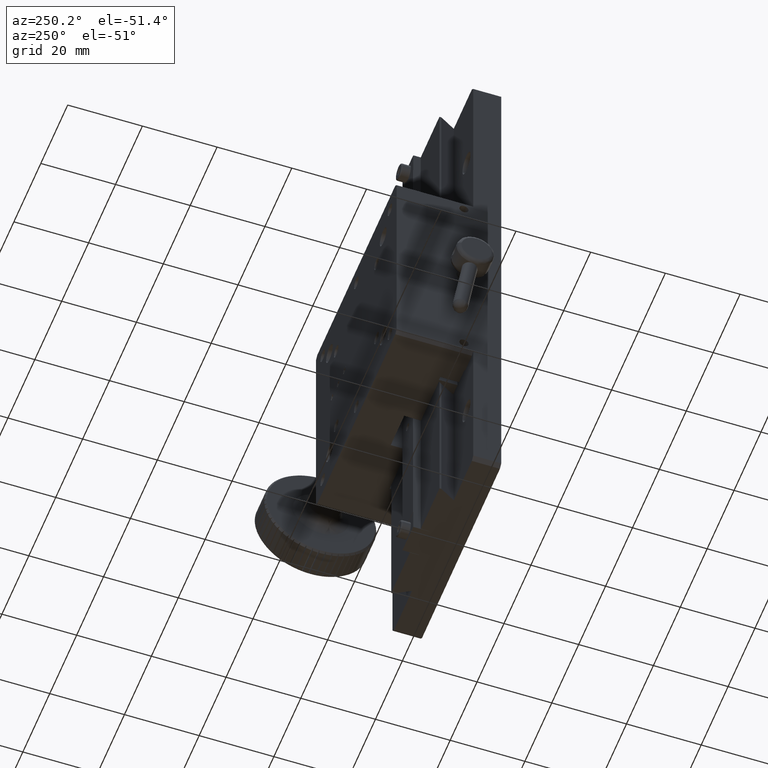
[diagram: clean part render]
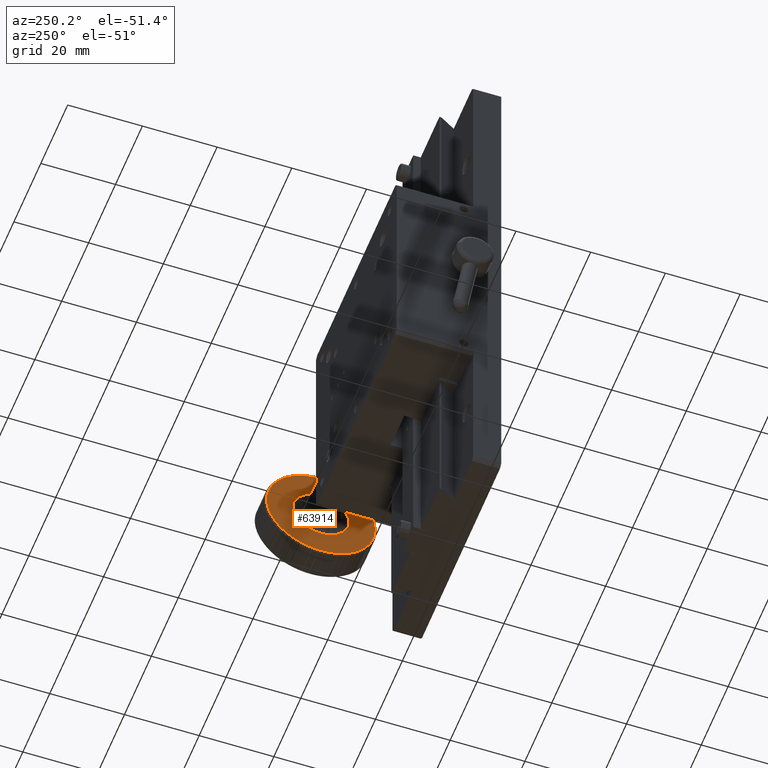
[diagram: same view with one face highlighted and labeled with its STEP entity id]
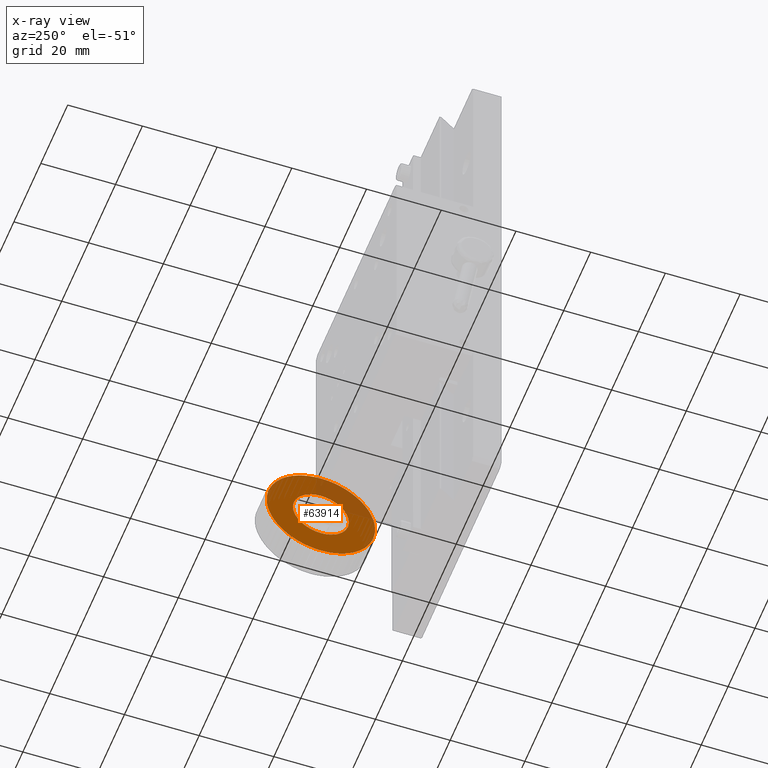
[diagram: x-ray of the same camera — body ghosted, the highlighted face saturated]
A machine part, auxiliary view. The second image highlights one B-rep face of the part: STEP entity #63914.
The next image is the same camera in x-ray: the body ghosted, the highlighted face saturated — about 21% of this face is hidden behind the body in this view.
In plain terms, the highlighted planar face has unit normal (1, 0, -0).
Its self-contained STEP definition (entity closure, byte-faithful):
#232 = CARTESIAN_POINT ( 'NONE',  ( 118.9015696099424844, 75.00408794080344421, 86.06019698115960637 ) ) ;
#410 = CARTESIAN_POINT ( 'NONE',  ( 118.9015696099414470, 89.40231383299942536, 84.34523600279980826 ) ) ;
#430 = CARTESIAN_POINT ( 'NONE',  ( 118.9015696099415607, 87.90411576022735574, 92.68132092336827554 ) ) ;
#704 = ORIENTED_EDGE ( 'NONE', *, *, #68886, .F. ) ;
#1112 = CARTESIAN_POINT ( 'NONE',  ( 118.9015696099425838, 73.71654745862105074, 100.5029196990802376 ) ) ;
#1373 = CARTESIAN_POINT ( 'NONE',  ( 118.9015696099424844, 75.00408794080344421, 86.06019698115960637 ) ) ;
#1397 = AXIS2_PLACEMENT_3D ( 'NONE', #73431, #41718, #34551 ) ;
#1443 = AXIS2_PLACEMENT_3D ( 'NONE', #77729, #84382, #46026 ) ;
#1455 = AXIS2_PLACEMENT_3D ( 'NONE', #30338, #15008, #46198 ) ;
#1562 = AXIS2_PLACEMENT_3D ( 'NONE', #19268, #99034, #42813 ) ;
#1816 = ORIENTED_EDGE ( 'NONE', *, *, #16479, .F. ) ;
#1970 = CARTESIAN_POINT ( 'NONE',  ( 118.9015696099422854, 77.66444812711456791, 93.07250642092982673 ) ) ;
#1978 = CARTESIAN_POINT ( 'NONE',  ( 118.9015696099415038, 88.59667302724825788, 91.10912069495820731 ) ) ;
#2119 = DIRECTION ( 'NONE',  ( 1.000000000000000000, 7.260422497122367093E-14, -3.328157626283211696E-16 ) ) ;
#2535 = DIRECTION ( 'NONE',  ( -7.273874988923439838E-14, 1.000000000000000000, 0.000000000000000000 ) ) ;
#2580 = CIRCLE ( 'NONE', #95842, 14.49999999999999822 ) ;
#2637 = EDGE_CURVE ( 'NONE', #27075, #62176, #68198, .T. ) ;
#2702 = VERTEX_POINT ( 'NONE', #83293 ) ;
#2736 = CIRCLE ( 'NONE', #61496, 14.49999999999999822 ) ;
#2811 = CARTESIAN_POINT ( 'NONE',  ( 118.9015696099435218, 60.52955383022080582, 85.20120787670080631 ) ) ;
#2933 = CIRCLE ( 'NONE', #60105, 14.49999999999999822 ) ;
#3244 = CARTESIAN_POINT ( 'NONE',  ( 118.9015696099435360, 60.52955383022082003, 86.91918608561853432 ) ) ;
#3252 = CIRCLE ( 'NONE', #4881, 14.49999999999999822 ) ;
#3274 = EDGE_CURVE ( 'NONE', #87458, #18703, #2933, .T. ) ;
#3508 = EDGE_CURVE ( 'NONE', #37802, #69131, #27376, .T. ) ;
#4076 = DIRECTION ( 'NONE',  ( -7.273874988923439838E-14, 1.000000000000000000, 0.000000000000000000 ) ) ;
#4414 = VERTEX_POINT ( 'NONE', #2811 ) ;
#4720 = CARTESIAN_POINT ( 'NONE',  ( 118.9015696099429391, 68.76814250779405313, 99.15076551566291130 ) ) ;
#4852 = EDGE_LOOP ( 'NONE', ( #33067, #38747 ) ) ;
#4881 = AXIS2_PLACEMENT_3D ( 'NONE', #32955, #95831, #80510 ) ;
#4997 = DIRECTION ( 'NONE',  ( 1.000000000000000000, 7.260422497122367093E-14, -3.328157626283211696E-16 ) ) ;
#5099 = CARTESIAN_POINT ( 'NONE',  ( 118.9015696099424844, 75.00408794080344421, 86.06019698115960637 ) ) ;
#5362 = CARTESIAN_POINT ( 'NONE',  ( 118.9015696099426691, 72.34372775449214998, 79.04788754138944284 ) ) ;
#5516 = CARTESIAN_POINT ( 'NONE',  ( 118.9015696099424844, 75.00408794080344421, 86.06019698115960637 ) ) ;
#6204 = AXIS2_PLACEMENT_3D ( 'NONE', #20304, #11645, #36664 ) ;
#6385 = CIRCLE ( 'NONE', #76653, 14.49999999999999822 ) ;
#6393 = CARTESIAN_POINT ( 'NONE',  ( 118.9015696099433796, 62.51895557017687821, 93.43389820157337056 ) ) ;
#7392 = CARTESIAN_POINT ( 'NONE',  ( 118.9015696099419728, 82.00457488039920406, 73.36204031932285829 ) ) ;
#7828 = CIRCLE ( 'NONE', #68303, 14.49999999999999822 ) ;
#8010 = AXIS2_PLACEMENT_3D ( 'NONE', #48219, #24687, #9348 ) ;
#8036 = CIRCLE ( 'NONE', #53732, 14.49999999999999822 ) ;
#8229 = EDGE_CURVE ( 'NONE', #101010, #33790, #63462, .T. ) ;
#8315 = CIRCLE ( 'NONE', #73693, 14.49999999999999822 ) ;
#8461 = EDGE_CURVE ( 'NONE', #58046, #82976, #81504, .T. ) ;
#8465 = VERTEX_POINT ( 'NONE', #85246 ) ;
#8860 = CARTESIAN_POINT ( 'NONE',  ( 118.9015696099434791, 61.13627366879394032, 90.29502015539584647 ) ) ;
#8904 = DIRECTION ( 'NONE',  ( -7.273874988923439838E-14, 1.000000000000000000, 0.000000000000000000 ) ) ;
#9348 = DIRECTION ( 'NONE',  ( -7.273874988923439838E-14, 1.000000000000000000, 0.000000000000000000 ) ) ;
#9410 = DIRECTION ( 'NONE',  ( 1.000000000000000000, 7.260422497122367093E-14, -3.328157626283211696E-16 ) ) ;
#9538 = EDGE_CURVE ( 'NONE', #11677, #95420, #52071, .T. ) ;
#9601 = CARTESIAN_POINT ( 'NONE',  ( 118.9015696099423280, 77.14496311883958413, 100.4012796973309349 ) ) ;
#9718 = VERTEX_POINT ( 'NONE', #5362 ) ;
#9960 = DIRECTION ( 'NONE',  ( 1.000000000000000000, 7.260422497122367093E-14, -3.328157626283211696E-16 ) ) ;
#9985 = AXIS2_PLACEMENT_3D ( 'NONE', #43577, #43070, #74279 ) ;
#10111 = EDGE_CURVE ( 'NONE', #49092, #92872, #61848, .T. ) ;
#10306 =( BOUNDED_CURVE ( )  B_SPLINE_CURVE ( 3, ( #1970, #49019, #17806, #50001 ),
 .UNSPECIFIED., .F., .T. ) 
 B_SPLINE_CURVE_WITH_KNOTS ( ( 4, 4 ),
 ( 0.000000000000000000, 1.000000000000000000 ),
 .UNSPECIFIED. ) 
 CURVE ( )  GEOMETRIC_REPRESENTATION_ITEM ( )  RATIONAL_B_SPLINE_CURVE ( ( 1.000000000000000000, 0.3333333333333321491, 0.3333333333333321491, 1.000000000000000000 ) ) 
 REPRESENTATION_ITEM ( '' )  );
#10540 = EDGE_CURVE ( 'NONE', #59543, #17063, #8036, .T. ) ;
#10819 = EDGE_CURVE ( 'NONE', #70922, #67849, #99521, .T. ) ;
#11063 = CIRCLE ( 'NONE', #101076, 14.49999999999999822 ) ;
#11484 = EDGE_CURVE ( 'NONE', #25901, #59543, #19493, .T. ) ;
#11494 = ORIENTED_EDGE ( 'NONE', *, *, #78228, .F. ) ;
#11518 = ORIENTED_EDGE ( 'NONE', *, *, #73108, .F. ) ;
#11525 = VERTEX_POINT ( 'NONE', #410 ) ;
#11601 = CARTESIAN_POINT ( 'NONE',  ( 118.9015696099424844, 75.00408794080344421, 86.06019698115960637 ) ) ;
#11645 = DIRECTION ( 'NONE',  ( 1.000000000000000000, 7.260422497122367093E-14, -3.328157626283211696E-16 ) ) ;
#11677 = VERTEX_POINT ( 'NONE', #9601 ) ;
#12498 = ORIENTED_EDGE ( 'NONE', *, *, #94490, .F. ) ;
#12653 = ORIENTED_EDGE ( 'NONE', *, *, #8461, .F. ) ;
#12918 = EDGE_CURVE ( 'NONE', #23426, #71209, #45643, .T. ) ;
#13101 = DIRECTION ( 'NONE',  ( 1.000000000000000000, 7.260422497122367093E-14, -3.328157626283211696E-16 ) ) ;
#13674 = DIRECTION ( 'NONE',  ( -7.273874988923439838E-14, 1.000000000000000000, 0.000000000000000000 ) ) ;
#13685 = ORIENTED_EDGE ( 'NONE', *, *, #55109, .F. ) ;
#14026 = VERTEX_POINT ( 'NONE', #19261 ) ;
#14198 = DIRECTION ( 'NONE',  ( 1.000000000000000000, 7.260422497122367093E-14, -3.328157626283211696E-16 ) ) ;
#14585 = CARTESIAN_POINT ( 'NONE',  ( 118.9015696099424844, 75.00408794080344421, 86.06019698115960637 ) ) ;
#14837 = FACE_OUTER_BOUND ( 'NONE', #61933, .T. ) ;
#15008 = DIRECTION ( 'NONE',  ( 1.000000000000000000, 7.260422497122367093E-14, -3.328157626283211696E-16 ) ) ;
#15205 = DIRECTION ( 'NONE',  ( -7.273874988923439838E-14, 1.000000000000000000, 0.000000000000000000 ) ) ;
#15361 = DIRECTION ( 'NONE',  ( 1.000000000000000000, 7.260422497122367093E-14, -3.328157626283211696E-16 ) ) ;
#16479 = EDGE_CURVE ( 'NONE', #42185, #20886, #68646, .T. ) ;
#17020 = EDGE_CURVE ( 'NONE', #28443, #49092, #57195, .T. ) ;
#17063 = VERTEX_POINT ( 'NONE', #49103 ) ;
#17410 = DIRECTION ( 'NONE',  ( 1.000000000000000000, 7.260422497122367093E-14, -3.328157626283211696E-16 ) ) ;
#17611 = CARTESIAN_POINT ( 'NONE',  ( 118.9015696099422001, 78.82610184880489612, 72.07298104348839729 ) ) ;
#17806 = CARTESIAN_POINT ( 'NONE',  ( 118.9015696099416601, 86.36834663403250545, 73.72716716876679754 ) ) ;
#18703 = VERTEX_POINT ( 'NONE', #29949 ) ;
#18872 = ORIENTED_EDGE ( 'NONE', *, *, #3508, .F. ) ;
#19261 = CARTESIAN_POINT ( 'NONE',  ( 118.9015696099422854, 77.66444812711456791, 93.07250642092982673 ) ) ;
#19268 = CARTESIAN_POINT ( 'NONE',  ( 118.9015696099424844, 75.00408794080344421, 86.06019698115960637 ) ) ;
#19273 = ORIENTED_EDGE ( 'NONE', *, *, #3274, .F. ) ;
#19294 = DIRECTION ( 'NONE',  ( 1.000000000000000000, 7.260422497122367093E-14, -3.328157626283211696E-16 ) ) ;
#19493 = CIRCLE ( 'NONE', #26004, 14.49999999999999822 ) ;
#19588 = ORIENTED_EDGE ( 'NONE', *, *, #39429, .F. ) ;
#20304 = CARTESIAN_POINT ( 'NONE',  ( 118.9015696099424844, 75.00408794080344421, 86.06019698115960637 ) ) ;
#20519 = CIRCLE ( 'NONE', #81003, 14.49999999999999822 ) ;
#20665 = CARTESIAN_POINT ( 'NONE',  ( 118.9015696099430386, 67.26364896031394380, 73.79905493038317843 ) ) ;
#20886 = VERTEX_POINT ( 'NONE', #70092 ) ;
#20938 = EDGE_CURVE ( 'NONE', #95420, #75816, #35792, .T. ) ;
#21214 = ORIENTED_EDGE ( 'NONE', *, *, #43456, .F. ) ;
#21386 = AXIS2_PLACEMENT_3D ( 'NONE', #68957, #30069, #30565 ) ;
#21572 = CARTESIAN_POINT ( 'NONE',  ( 118.9015696099424844, 75.00408794080344421, 86.06019698115960637 ) ) ;
#21819 = CARTESIAN_POINT ( 'NONE',  ( 118.9015696099417738, 84.79134146281764117, 96.75877952726450815 ) ) ;
#22196 = AXIS2_PLACEMENT_3D ( 'NONE', #99493, #46773, #92818 ) ;
#22315 = EDGE_CURVE ( 'NONE', #51288, #65307, #34253, .T. ) ;
#22580 = CARTESIAN_POINT ( 'NONE',  ( 118.9015696099436639, 58.31910887495381957, 84.36860791401130655 ) ) ;
#22742 = DIRECTION ( 'NONE',  ( 1.000000000000000000, 7.260422497122367093E-14, -3.328157626283211696E-16 ) ) ;
#22789 = AXIS2_PLACEMENT_3D ( 'NONE', #42962, #96664, #4076 ) ;
#22824 = VERTEX_POINT ( 'NONE', #99872 ) ;
#22900 = DIRECTION ( 'NONE',  ( 1.000000000000000000, 7.260422497122367093E-14, -3.328157626283211696E-16 ) ) ;
#23392 = DIRECTION ( 'NONE',  ( -7.273874988923439838E-14, 1.000000000000000000, 0.000000000000000000 ) ) ;
#23426 = VERTEX_POINT ( 'NONE', #47679 ) ;
#23516 = CARTESIAN_POINT ( 'NONE',  ( 118.9015696099414754, 89.09842019496937837, 82.65434931733534540 ) ) ;
#23600 = DIRECTION ( 'NONE',  ( 1.000000000000000000, 7.260422497122367093E-14, -3.328157626283211696E-16 ) ) ;
#23729 = CARTESIAN_POINT ( 'NONE',  ( 118.9015696099431381, 65.86781420886876504, 97.31979299057128685 ) ) ;
#23827 = DIRECTION ( 'NONE',  ( -7.273874988923439838E-14, 1.000000000000000000, 0.000000000000000000 ) ) ;
#24094 = AXIS2_PLACEMENT_3D ( 'NONE', #84279, #83784, #23392 ) ;
#24232 = CARTESIAN_POINT ( 'NONE',  ( 118.9015696099434365, 61.73447649077974830, 91.90548670583527269 ) ) ;
#24498 = CIRCLE ( 'NONE', #37572, 14.49999999999999822 ) ;
#24629 = CIRCLE ( 'NONE', #37618, 14.49999999999999822 ) ;
#24652 = ORIENTED_EDGE ( 'NONE', *, *, #82846, .F. ) ;
#24665 = CIRCLE ( 'NONE', #21386, 14.49999999999999822 ) ;
#24687 = DIRECTION ( 'NONE',  ( 1.000000000000000000, 7.260422497122367093E-14, -3.328157626283211696E-16 ) ) ;
#25083 = ORIENTED_EDGE ( 'NONE', *, *, #36470, .F. ) ;
#25901 = VERTEX_POINT ( 'NONE', #82292 ) ;
#26004 = AXIS2_PLACEMENT_3D ( 'NONE', #78153, #45441, #39286 ) ;
#26226 = AXIS2_PLACEMENT_3D ( 'NONE', #77838, #23600, #30270 ) ;
#26285 = EDGE_CURVE ( 'NONE', #41804, #88828, #8315, .T. ) ;
#26496 = EDGE_CURVE ( 'NONE', #46847, #101010, #24665, .T. ) ;
#26839 = CARTESIAN_POINT ( 'NONE',  ( 118.9015696099424844, 75.00408794080344421, 86.06019698115960637 ) ) ;
#27075 = VERTEX_POINT ( 'NONE', #8860 ) ;
#27376 = CIRCLE ( 'NONE', #6204, 14.49999999999999822 ) ;
#27829 = CIRCLE ( 'NONE', #98098, 14.49999999999999822 ) ;
#28061 = EDGE_CURVE ( 'NONE', #67849, #77752, #7828, .T. ) ;
#28425 = CARTESIAN_POINT ( 'NONE',  ( 118.9015696099422001, 78.82610184880508086, 100.0474129188307302 ) ) ;
#28443 = VERTEX_POINT ( 'NONE', #4720 ) ;
#28635 = DIRECTION ( 'NONE',  ( 1.000000000000000000, 7.260422497122367093E-14, -3.328157626283211696E-16 ) ) ;
#29160 = CIRCLE ( 'NONE', #74892, 14.49999999999999822 ) ;
#29168 = CIRCLE ( 'NONE', #101159, 14.49999999999999822 ) ;
#29247 = ORIENTED_EDGE ( 'NONE', *, *, #17020, .F. ) ;
#29575 = DIRECTION ( 'NONE',  ( -7.273874988923439838E-14, 1.000000000000000000, 0.000000000000000000 ) ) ;
#29579 = ORIENTED_EDGE ( 'NONE', *, *, #85725, .F. ) ;
#29809 = DIRECTION ( 'NONE',  ( 1.000000000000000000, 7.260422497122367093E-14, -3.328157626283211696E-16 ) ) ;
#29949 = CARTESIAN_POINT ( 'NONE',  ( 118.9015696099420865, 80.45358788146006646, 99.49719628892108858 ) ) ;
#30069 = DIRECTION ( 'NONE',  ( 1.000000000000000000, 7.260422497122367093E-14, -3.328157626283211696E-16 ) ) ;
#30212 = EDGE_CURVE ( 'NONE', #33790, #87458, #29160, .T. ) ;
#30213 = DIRECTION ( 'NONE',  ( 1.000000000000000000, 7.260422497122367093E-14, -3.328157626283211696E-16 ) ) ;
#30270 = DIRECTION ( 'NONE',  ( -7.273874988923439838E-14, 1.000000000000000000, 0.000000000000000000 ) ) ;
#30338 = CARTESIAN_POINT ( 'NONE',  ( 118.9015696099424844, 75.00408794080344421, 86.06019698115960637 ) ) ;
#30378 = CARTESIAN_POINT ( 'NONE',  ( 118.9015696099432375, 64.60023271366075903, 96.16018690257311619 ) ) ;
#30565 = DIRECTION ( 'NONE',  ( -7.273874988923439838E-14, 1.000000000000000000, 0.000000000000000000 ) ) ;
#30726 = DIRECTION ( 'NONE',  ( 1.000000000000000000, 7.260422497122367093E-14, -3.328157626283211696E-16 ) ) ;
#31358 = ORIENTED_EDGE ( 'NONE', *, *, #26496, .F. ) ;
#31431 = DIRECTION ( 'NONE',  ( -7.273874988923439838E-14, 1.000000000000000000, 0.000000000000000000 ) ) ;
#31506 = ORIENTED_EDGE ( 'NONE', *, *, #28061, .F. ) ;
#32011 = ORIENTED_EDGE ( 'NONE', *, *, #26285, .F. ) ;
#32093 = DIRECTION ( 'NONE',  ( 1.000000000000000000, 7.260422497122367093E-14, -3.328157626283211696E-16 ) ) ;
#32227 = CARTESIAN_POINT ( 'NONE',  ( 118.9015696099424844, 75.00408794080344421, 86.06019698115960637 ) ) ;
#32349 = CARTESIAN_POINT ( 'NONE',  ( 118.9015696099418733, 83.45729038796326904, 74.27913725007721268 ) ) ;
#32460 = DIRECTION ( 'NONE',  ( -7.273874988923439838E-14, 1.000000000000000000, 0.000000000000000000 ) ) ;
#32489 = CARTESIAN_POINT ( 'NONE',  ( 118.9015696099416743, 85.98800095214691908, 76.59427626739702077 ) ) ;
#32543 = CARTESIAN_POINT ( 'NONE',  ( 118.9015696099430386, 67.26364896031410012, 98.32133903193613378 ) ) ;
#32955 = CARTESIAN_POINT ( 'NONE',  ( 118.9015696099424844, 75.00408794080344421, 86.06019698115960637 ) ) ;
#33067 = ORIENTED_EDGE ( 'NONE', *, *, #35718, .F. ) ;
#33265 = EDGE_CURVE ( 'NONE', #11525, #61089, #11063, .T. ) ;
#33606 = DIRECTION ( 'NONE',  ( 1.000000000000000000, 7.260422497122367093E-14, -3.328157626283211696E-16 ) ) ;
#33790 = VERTEX_POINT ( 'NONE', #91280 ) ;
#33993 = CIRCLE ( 'NONE', #38956, 14.49999999999999822 ) ;
#34253 = CIRCLE ( 'NONE', #101198, 14.49999999999999822 ) ;
#34259 = VERTEX_POINT ( 'NONE', #30378 ) ;
#34551 = DIRECTION ( 'NONE',  ( -7.273874988923439838E-14, 1.000000000000000000, 0.000000000000000000 ) ) ;
#34990 = EDGE_CURVE ( 'NONE', #64326, #11677, #87814, .T. ) ;
#35174 = ORIENTED_EDGE ( 'NONE', *, *, #98992, .F. ) ;
#35332 = CIRCLE ( 'NONE', #77776, 14.49999999999999822 ) ;
#35575 = EDGE_CURVE ( 'NONE', #20886, #50277, #53549, .T. ) ;
#35718 = EDGE_CURVE ( 'NONE', #9718, #14026, #42919, .T. ) ;
#35753 = DIRECTION ( 'NONE',  ( 1.000000000000000000, 7.260422497122367093E-14, -3.328157626283211696E-16 ) ) ;
#35792 = CIRCLE ( 'NONE', #99515, 14.49999999999999822 ) ;
#35831 = AXIS2_PLACEMENT_3D ( 'NONE', #232, #61107, #8904 ) ;
#36101 = CARTESIAN_POINT ( 'NONE',  ( 118.9015696099416743, 85.98800095214704697, 95.52611769492202143 ) ) ;
#36454 = ORIENTED_EDGE ( 'NONE', *, *, #73708, .F. ) ;
#36470 = EDGE_CURVE ( 'NONE', #17063, #70922, #58295, .T. ) ;
#36502 = CARTESIAN_POINT ( 'NONE',  ( 118.9015696099434933, 61.13627366879386926, 81.82537380692353679 ) ) ;
#36645 = EDGE_CURVE ( 'NONE', #74918, #58040, #58218, .T. ) ;
#36664 = DIRECTION ( 'NONE',  ( -7.273874988923439838E-14, 1.000000000000000000, 0.000000000000000000 ) ) ;
#37159 = DIRECTION ( 'NONE',  ( -7.273874988923439838E-14, 1.000000000000000000, 0.000000000000000000 ) ) ;
#37254 = EDGE_CURVE ( 'NONE', #73484, #74918, #2736, .T. ) ;
#37492 = DIRECTION ( 'NONE',  ( -7.273874988923439838E-14, 1.000000000000000000, 0.000000000000000000 ) ) ;
#37572 = AXIS2_PLACEMENT_3D ( 'NONE', #83846, #101196, #76179 ) ;
#37618 = AXIS2_PLACEMENT_3D ( 'NONE', #5516, #100109, #84262 ) ;
#37802 = VERTEX_POINT ( 'NONE', #54184 ) ;
#38747 = ORIENTED_EDGE ( 'NONE', *, *, #100715, .F. ) ;
#38956 = AXIS2_PLACEMENT_3D ( 'NONE', #69111, #61927, #68607 ) ;
#39286 = DIRECTION ( 'NONE',  ( -7.273874988923439838E-14, 1.000000000000000000, 0.000000000000000000 ) ) ;
#39291 = ORIENTED_EDGE ( 'NONE', *, *, #84031, .F. ) ;
#39390 = VERTEX_POINT ( 'NONE', #59144 ) ;
#39429 = EDGE_CURVE ( 'NONE', #18703, #64326, #42018, .T. ) ;
#40578 = ORIENTED_EDGE ( 'NONE', *, *, #8229, .F. ) ;
#40930 = DIRECTION ( 'NONE',  ( 1.000000000000000000, 7.260422497122367093E-14, -3.328157626283211696E-16 ) ) ;
#41205 = VERTEX_POINT ( 'NONE', #17611 ) ;
#41718 = DIRECTION ( 'NONE',  ( 1.000000000000000000, 7.260422497122367093E-14, -3.328157626283211696E-16 ) ) ;
#41804 = VERTEX_POINT ( 'NONE', #75894 ) ;
#42018 = CIRCLE ( 'NONE', #50186, 14.49999999999999822 ) ;
#42185 = VERTEX_POINT ( 'NONE', #32349 ) ;
#42216 = DIRECTION ( 'NONE',  ( 1.000000000000000000, 7.260422497122367093E-14, -3.328157626283211696E-16 ) ) ;
#42813 = DIRECTION ( 'NONE',  ( -7.273874988923439838E-14, 1.000000000000000000, 0.000000000000000000 ) ) ;
#42919 =( BOUNDED_CURVE ( )  B_SPLINE_CURVE ( 3, ( #85502, #22580, #62472, #55306 ),
 .UNSPECIFIED., .F., .T. ) 
 B_SPLINE_CURVE_WITH_KNOTS ( ( 4, 4 ),
 ( 0.000000000000000000, 1.000000000000000000 ),
 .UNSPECIFIED. ) 
 CURVE ( )  GEOMETRIC_REPRESENTATION_ITEM ( )  RATIONAL_B_SPLINE_CURVE ( ( 1.000000000000000000, 0.3333333333333806103, 0.3333333333333806103, 1.000000000000000000 ) ) 
 REPRESENTATION_ITEM ( '' )  );
#42962 = CARTESIAN_POINT ( 'NONE',  ( 118.9015696099424844, 75.00408794080344421, 86.06019698115960637 ) ) ;
#43070 = DIRECTION ( 'NONE',  ( 1.000000000000000000, 7.260422497122367093E-14, -3.328157626283211696E-16 ) ) ;
#43456 = EDGE_CURVE ( 'NONE', #100314, #41205, #81306, .T. ) ;
#43468 = ORIENTED_EDGE ( 'NONE', *, *, #9538, .F. ) ;
#43577 = CARTESIAN_POINT ( 'NONE',  ( 118.9015696099424844, 75.00408794080344421, 86.06019698115960637 ) ) ;
#43785 = DIRECTION ( 'NONE',  ( -7.273874988923439838E-14, 1.000000000000000000, 0.000000000000000000 ) ) ;
#43897 = CARTESIAN_POINT ( 'NONE',  ( 118.9015696099414185, 89.50408794080343000, 86.06019698115960637 ) ) ;
#43955 = ORIENTED_EDGE ( 'NONE', *, *, #35575, .F. ) ;
#44625 = CARTESIAN_POINT ( 'NONE',  ( 118.9015696099424844, 75.00408794080344421, 86.06019698115960637 ) ) ;
#44663 = CARTESIAN_POINT ( 'NONE',  ( 118.9015696099424844, 75.00408794080344421, 86.06019698115960637 ) ) ;
#45441 = DIRECTION ( 'NONE',  ( 1.000000000000000000, 7.260422497122367093E-14, -3.328157626283211696E-16 ) ) ;
#45643 = CIRCLE ( 'NONE', #1562, 14.49999999999999822 ) ;
#45870 = CARTESIAN_POINT ( 'NONE',  ( 118.9015696099424844, 75.00408794080344421, 86.06019698115960637 ) ) ;
#46026 = DIRECTION ( 'NONE',  ( -7.255693219817081362E-14, 1.000000000000000000, 0.000000000000000000 ) ) ;
#46198 = DIRECTION ( 'NONE',  ( -7.273874988923439838E-14, 1.000000000000000000, 0.000000000000000000 ) ) ;
#46450 = ORIENTED_EDGE ( 'NONE', *, *, #60313, .F. ) ;
#46773 = DIRECTION ( 'NONE',  ( 1.000000000000000000, 7.260422497122367093E-14, -3.328157626283211696E-16 ) ) ;
#46847 = VERTEX_POINT ( 'NONE', #36101 ) ;
#46850 = DIRECTION ( 'NONE',  ( 1.000000000000000000, 7.260422497122367093E-14, -3.328157626283211696E-16 ) ) ;
#47064 = CARTESIAN_POINT ( 'NONE',  ( 118.9015696099424844, 75.00408794080344421, 86.06019698115960637 ) ) ;
#47153 = CARTESIAN_POINT ( 'NONE',  ( 118.9015696099424417, 75.43377119423072941, 100.5538291105370945 ) ) ;
#47257 = ORIENTED_EDGE ( 'NONE', *, *, #55334, .F. ) ;
#47334 = AXIS2_PLACEMENT_3D ( 'NONE', #5099, #82343, #65966 ) ;
#47609 = CARTESIAN_POINT ( 'NONE',  ( 118.9015696099424844, 75.00408794080344421, 86.06019698115960637 ) ) ;
#47679 = CARTESIAN_POINT ( 'NONE',  ( 118.9015696099415038, 88.59667302724817262, 81.01127326736082068 ) ) ;
#48219 = CARTESIAN_POINT ( 'NONE',  ( 118.9015696099424844, 75.00408794080344421, 86.06019698115960637 ) ) ;
#48306 = CARTESIAN_POINT ( 'NONE',  ( 118.9015696099432375, 64.60023271366063113, 75.96020705974621023 ) ) ;
#48693 = ORIENTED_EDGE ( 'NONE', *, *, #10111, .F. ) ;
#48756 = CIRCLE ( 'NONE', #58515, 14.49999999999999822 ) ;
#48817 = CARTESIAN_POINT ( 'NONE',  ( 118.9015696099424844, 75.00408794080344421, 86.06019698115960637 ) ) ;
#49019 = CARTESIAN_POINT ( 'NONE',  ( 118.9015696099412764, 91.68906700665512233, 87.75178604830716722 ) ) ;
#49092 = VERTEX_POINT ( 'NONE', #32543 ) ;
#49103 = CARTESIAN_POINT ( 'NONE',  ( 118.9015696099429391, 68.76814250779386839, 72.96962844665637249 ) ) ;
#49171 = DIRECTION ( 'NONE',  ( -7.273874988923439838E-14, 1.000000000000000000, 0.000000000000000000 ) ) ;
#49923 = DIRECTION ( 'NONE',  ( 1.000000000000000000, 7.260422497122367093E-14, -3.328157626283211696E-16 ) ) ;
#50001 = CARTESIAN_POINT ( 'NONE',  ( 118.9015696099426691, 72.34372775449214998, 79.04788754138944284 ) ) ;
#50186 = AXIS2_PLACEMENT_3D ( 'NONE', #11601, #74000, #98017 ) ;
#50277 = VERTEX_POINT ( 'NONE', #32489 ) ;
#50391 = AXIS2_PLACEMENT_3D ( 'NONE', #52533, #90417, #13674 ) ;
#50435 = CARTESIAN_POINT ( 'NONE',  ( 118.9015696099419728, 82.00457488039938880, 98.75835364299622654 ) ) ;
#50509 = ORIENTED_EDGE ( 'NONE', *, *, #74269, .F. ) ;
#50594 = CARTESIAN_POINT ( 'NONE',  ( 118.9015696099424844, 75.00408794080344421, 86.06019698115960637 ) ) ;
#50780 = CARTESIAN_POINT ( 'NONE',  ( 118.9015696099424844, 75.00408794080344421, 86.06019698115960637 ) ) ;
#51087 = ORIENTED_EDGE ( 'NONE', *, *, #33265, .F. ) ;
#51288 = VERTEX_POINT ( 'NONE', #73892 ) ;
#51320 = DIRECTION ( 'NONE',  ( -7.273874988923439838E-14, 1.000000000000000000, 0.000000000000000000 ) ) ;
#51690 = CIRCLE ( 'NONE', #87646, 14.49999999999999822 ) ;
#51760 = ORIENTED_EDGE ( 'NONE', *, *, #61774, .F. ) ;
#51833 = CARTESIAN_POINT ( 'NONE',  ( 118.9015696099424844, 75.00408794080344421, 86.06019698115960637 ) ) ;
#52071 = CIRCLE ( 'NONE', #1397, 14.49999999999999822 ) ;
#52101 = AXIS2_PLACEMENT_3D ( 'NONE', #99592, #68908, #83255 ) ;
#52227 = AXIS2_PLACEMENT_3D ( 'NONE', #47609, #17410, #78818 ) ;
#52400 = ORIENTED_EDGE ( 'NONE', *, *, #11484, .F. ) ;
#52533 = CARTESIAN_POINT ( 'NONE',  ( 118.9015696099424844, 75.00408794080344421, 86.06019698115960637 ) ) ;
#53176 = FACE_BOUND ( 'NONE', #4852, .T. ) ;
#53197 = VERTEX_POINT ( 'NONE', #79429 ) ;
#53237 = CARTESIAN_POINT ( 'NONE',  ( 118.9015696099424844, 75.00408794080344421, 86.06019698115960637 ) ) ;
#53316 = AXIS2_PLACEMENT_3D ( 'NONE', #89043, #79876, #57340 ) ;
#53549 = CIRCLE ( 'NONE', #89471, 14.49999999999999822 ) ;
#53638 = ORIENTED_EDGE ( 'NONE', *, *, #85413, .F. ) ;
#53732 = AXIS2_PLACEMENT_3D ( 'NONE', #81289, #40930, #73634 ) ;
#54076 = CIRCLE ( 'NONE', #9985, 14.49999999999999822 ) ;
#54184 = CARTESIAN_POINT ( 'NONE',  ( 118.9015696099420865, 80.45358788145988171, 72.62319767339802468 ) ) ;
#54217 = CARTESIAN_POINT ( 'NONE',  ( 118.9015696099428112, 70.36017505979226883, 72.32396485027386746 ) ) ;
#54263 = ORIENTED_EDGE ( 'NONE', *, *, #67068, .F. ) ;
#54366 = CARTESIAN_POINT ( 'NONE',  ( 118.9015696099416033, 87.03047037983147050, 94.16057508531238796 ) ) ;
#55109 = EDGE_CURVE ( 'NONE', #75816, #2702, #71823, .T. ) ;
#55306 = CARTESIAN_POINT ( 'NONE',  ( 118.9015696099422854, 77.66444812711456791, 93.07250642092982673 ) ) ;
#55334 = EDGE_CURVE ( 'NONE', #41205, #37802, #78376, .T. ) ;
#55563 = EDGE_CURVE ( 'NONE', #92872, #34259, #88181, .T. ) ;
#55591 = DIRECTION ( 'NONE',  ( -7.273874988923439838E-14, 1.000000000000000000, 0.000000000000000000 ) ) ;
#55618 = CARTESIAN_POINT ( 'NONE',  ( 118.9015696099424844, 75.00408794080344421, 86.06019698115960637 ) ) ;
#55775 = CARTESIAN_POINT ( 'NONE',  ( 118.9015696099435218, 60.73274456056329740, 83.49528799188236405 ) ) ;
#56389 = EDGE_CURVE ( 'NONE', #56638, #73484, #75120, .T. ) ;
#56638 = VERTEX_POINT ( 'NONE', #55775 ) ;
#56822 = CARTESIAN_POINT ( 'NONE',  ( 118.9015696099424844, 75.00408794080344421, 86.06019698115960637 ) ) ;
#56991 = CIRCLE ( 'NONE', #1455, 14.49999999999999822 ) ;
#57033 = AXIS2_PLACEMENT_3D ( 'NONE', #50594, #35753, #90988 ) ;
#57057 = DIRECTION ( 'NONE',  ( -7.273874988923439838E-14, 1.000000000000000000, 0.000000000000000000 ) ) ;
#57110 = CARTESIAN_POINT ( 'NONE',  ( 118.9015696099427117, 72.01739796905748392, 71.87112784281680433 ) ) ;
#57195 = CIRCLE ( 'NONE', #70250, 14.49999999999999822 ) ;
#57340 = DIRECTION ( 'NONE',  ( -7.273874988923439838E-14, 1.000000000000000000, 0.000000000000000000 ) ) ;
#58040 = VERTEX_POINT ( 'NONE', #101182 ) ;
#58046 = VERTEX_POINT ( 'NONE', #430 ) ;
#58056 = CARTESIAN_POINT ( 'NONE',  ( 118.9015696099424844, 75.00408794080344421, 86.06019698115960637 ) ) ;
#58202 = CIRCLE ( 'NONE', #87568, 14.49999999999999822 ) ;
#58218 = CIRCLE ( 'NONE', #53316, 14.49999999999999822 ) ;
#58295 = CIRCLE ( 'NONE', #86038, 14.49999999999999822 ) ;
#58440 = DIRECTION ( 'NONE',  ( -7.273874988923439838E-14, 1.000000000000000000, 0.000000000000000000 ) ) ;
#58515 = AXIS2_PLACEMENT_3D ( 'NONE', #53237, #30726, #100290 ) ;
#59144 = CARTESIAN_POINT ( 'NONE',  ( 118.9015696099415464, 87.90411576022727047, 79.43907303895075245 ) ) ;
#59543 = VERTEX_POINT ( 'NONE', #20665 ) ;
#59841 = DIRECTION ( 'NONE',  ( -7.273874988923439838E-14, 1.000000000000000000, 0.000000000000000000 ) ) ;
#59941 = DIRECTION ( 'NONE',  ( -7.273874988923439838E-14, 1.000000000000000000, 0.000000000000000000 ) ) ;
#60105 = AXIS2_PLACEMENT_3D ( 'NONE', #89376, #19294, #37159 ) ;
#60313 = EDGE_CURVE ( 'NONE', #61089, #41804, #89929, .T. ) ;
#60408 = AXIS2_PLACEMENT_3D ( 'NONE', #100281, #30213, #92614 ) ;
#60929 = ORIENTED_EDGE ( 'NONE', *, *, #10540, .F. ) ;
#61089 = VERTEX_POINT ( 'NONE', #43897 ) ;
#61107 = DIRECTION ( 'NONE',  ( 1.000000000000000000, 7.260422497122367093E-14, -3.328157626283211696E-16 ) ) ;
#61233 = CARTESIAN_POINT ( 'NONE',  ( 118.9015696099435218, 60.73274456056336135, 88.62510597043700500 ) ) ;
#61496 = AXIS2_PLACEMENT_3D ( 'NONE', #82873, #28635, #59841 ) ;
#61774 = EDGE_CURVE ( 'NONE', #93142, #27075, #24629, .T. ) ;
#61848 = CIRCLE ( 'NONE', #88021, 14.49999999999999822 ) ;
#61927 = DIRECTION ( 'NONE',  ( 1.000000000000000000, 7.260422497122367093E-14, -3.328157626283211696E-16 ) ) ;
#61929 = ORIENTED_EDGE ( 'NONE', *, *, #65225, .F. ) ;
#61933 = EDGE_LOOP ( 'NONE', ( #46450, #51087, #35174, #67284, #68756, #50509, #24652, #43955, #1816, #53638, #18872, #47257, #21214, #89923, #11518, #31506, #63826, #25083, #60929, #52400, #29579, #81397, #77043, #62460, #90407, #86334, #98812, #11494, #54263, #69981, #51760, #86852, #39291, #93762, #97918, #48693, #29247, #704, #12498, #13685, #77636, #43468, #99041, #19588, #19273, #65628, #40578, #31358, #61929, #12653, #36454, #100140, #32011 ) ) ;
#62041 = EDGE_CURVE ( 'NONE', #58040, #51288, #27829, .T. ) ;
#62058 = AXIS2_PLACEMENT_3D ( 'NONE', #99390, #68193, #37492 ) ;
#62176 = VERTEX_POINT ( 'NONE', #61233 ) ;
#62369 = DIRECTION ( 'NONE',  ( 1.000000000000000000, 7.260422497122367093E-14, -3.328157626283211696E-16 ) ) ;
#62460 = ORIENTED_EDGE ( 'NONE', *, *, #36645, .F. ) ;
#62472 = CARTESIAN_POINT ( 'NONE',  ( 118.9015696099433086, 63.63982924757470983, 98.39322679355001355 ) ) ;
#63275 = DIRECTION ( 'NONE',  ( -7.273874988923439838E-14, 1.000000000000000000, 0.000000000000000000 ) ) ;
#63462 = CIRCLE ( 'NONE', #50391, 14.49999999999999822 ) ;
#63557 = CIRCLE ( 'NONE', #35831, 14.49999999999999822 ) ;
#63826 = ORIENTED_EDGE ( 'NONE', *, *, #10819, .F. ) ;
#63914 = ADVANCED_FACE ( 'NONE', ( #14837, #53176 ), #68541, .F. ) ;
#64326 = VERTEX_POINT ( 'NONE', #28425 ) ;
#65136 = AXIS2_PLACEMENT_3D ( 'NONE', #45870, #78590, #23827 ) ;
#65225 = EDGE_CURVE ( 'NONE', #82976, #46847, #94525, .T. ) ;
#65307 = VERTEX_POINT ( 'NONE', #48306 ) ;
#65582 = DIRECTION ( 'NONE',  ( 1.000000000000000000, 7.260422497122367093E-14, -3.328157626283211696E-16 ) ) ;
#65628 = ORIENTED_EDGE ( 'NONE', *, *, #30212, .F. ) ;
#65966 = DIRECTION ( 'NONE',  ( -7.273874988923439838E-14, 1.000000000000000000, 0.000000000000000000 ) ) ;
#67068 = EDGE_CURVE ( 'NONE', #62176, #74936, #84811, .T. ) ;
#67153 = DIRECTION ( 'NONE',  ( 1.000000000000000000, 7.260422497122367093E-14, -3.328157626283211696E-16 ) ) ;
#67284 = ORIENTED_EDGE ( 'NONE', *, *, #12918, .F. ) ;
#67849 = VERTEX_POINT ( 'NONE', #57110 ) ;
#68193 = DIRECTION ( 'NONE',  ( 1.000000000000000000, 7.260422497122367093E-14, -3.328157626283211696E-16 ) ) ;
#68198 = CIRCLE ( 'NONE', #24094, 14.49999999999999822 ) ;
#68303 = AXIS2_PLACEMENT_3D ( 'NONE', #21572, #81978, #59941 ) ;
#68541 = PLANE ( 'NONE',  #1443 ) ;
#68607 = DIRECTION ( 'NONE',  ( -7.273874988923439838E-14, 1.000000000000000000, 0.000000000000000000 ) ) ;
#68646 = CIRCLE ( 'NONE', #62058, 14.49999999999999822 ) ;
#68756 = ORIENTED_EDGE ( 'NONE', *, *, #78263, .F. ) ;
#68886 = EDGE_CURVE ( 'NONE', #82348, #28443, #6385, .T. ) ;
#68908 = DIRECTION ( 'NONE',  ( 1.000000000000000000, 7.260422497122367093E-14, -3.328157626283211696E-16 ) ) ;
#68957 = CARTESIAN_POINT ( 'NONE',  ( 118.9015696099424844, 75.00408794080344421, 86.06019698115960637 ) ) ;
#69047 = CARTESIAN_POINT ( 'NONE',  ( 118.9015696099424844, 75.00408794080344421, 86.06019698115960637 ) ) ;
#69111 = CARTESIAN_POINT ( 'NONE',  ( 118.9015696099424844, 75.00408794080344421, 86.06019698115960637 ) ) ;
#69131 = VERTEX_POINT ( 'NONE', #7392 ) ;
#69419 = CARTESIAN_POINT ( 'NONE',  ( 118.9015696099424844, 75.00408794080344421, 86.06019698115960637 ) ) ;
#69981 = ORIENTED_EDGE ( 'NONE', *, *, #2637, .F. ) ;
#70092 = CARTESIAN_POINT ( 'NONE',  ( 118.9015696099417738, 84.79134146281747064, 75.36161443505454827 ) ) ;
#70250 = AXIS2_PLACEMENT_3D ( 'NONE', #32227, #95135, #2535 ) ;
#70922 = VERTEX_POINT ( 'NONE', #54217 ) ;
#71209 = VERTEX_POINT ( 'NONE', #23516 ) ;
#71769 = DIRECTION ( 'NONE',  ( -7.273874988923439838E-14, 1.000000000000000000, 0.000000000000000000 ) ) ;
#71823 = CIRCLE ( 'NONE', #52227, 14.49999999999999822 ) ;
#73108 = EDGE_CURVE ( 'NONE', #77752, #8465, #58202, .T. ) ;
#73327 = CARTESIAN_POINT ( 'NONE',  ( 118.9015696099434365, 61.73447649077967014, 80.21490725648406794 ) ) ;
#73360 = AXIS2_PLACEMENT_3D ( 'NONE', #81437, #65582, #71769 ) ;
#73431 = CARTESIAN_POINT ( 'NONE',  ( 118.9015696099424844, 75.00408794080344421, 86.06019698115960637 ) ) ;
#73484 = VERTEX_POINT ( 'NONE', #36502 ) ;
#73634 = DIRECTION ( 'NONE',  ( -7.273874988923439838E-14, 1.000000000000000000, 0.000000000000000000 ) ) ;
#73693 = AXIS2_PLACEMENT_3D ( 'NONE', #89968, #22900, #29575 ) ;
#73708 = EDGE_CURVE ( 'NONE', #98505, #58046, #35332, .T. ) ;
#73892 = CARTESIAN_POINT ( 'NONE',  ( 118.9015696099433228, 63.47869854030981429, 77.26159486679009092 ) ) ;
#74000 = DIRECTION ( 'NONE',  ( 1.000000000000000000, 7.260422497122367093E-14, -3.328157626283211696E-16 ) ) ;
#74269 = EDGE_CURVE ( 'NONE', #22824, #39390, #51690, .T. ) ;
#74279 = DIRECTION ( 'NONE',  ( -7.273874988923439838E-14, 1.000000000000000000, 0.000000000000000000 ) ) ;
#74892 = AXIS2_PLACEMENT_3D ( 'NONE', #76080, #4997, #85254 ) ;
#74918 = VERTEX_POINT ( 'NONE', #73327 ) ;
#74936 = VERTEX_POINT ( 'NONE', #3244 ) ;
#74951 = DIRECTION ( 'NONE',  ( 1.000000000000000000, 7.260422497122367093E-14, -3.328157626283211696E-16 ) ) ;
#75120 = CIRCLE ( 'NONE', #60408, 14.49999999999999822 ) ;
#75816 = VERTEX_POINT ( 'NONE', #1112 ) ;
#75836 = DIRECTION ( 'NONE',  ( 1.000000000000000000, 7.260422497122367093E-14, -3.328157626283211696E-16 ) ) ;
#75894 = CARTESIAN_POINT ( 'NONE',  ( 118.9015696099414328, 89.40231383299945378, 87.77515795951921973 ) ) ;
#76080 = CARTESIAN_POINT ( 'NONE',  ( 118.9015696099424844, 75.00408794080344421, 86.06019698115960637 ) ) ;
#76179 = DIRECTION ( 'NONE',  ( -7.273874988923439838E-14, 1.000000000000000000, 0.000000000000000000 ) ) ;
#76653 = AXIS2_PLACEMENT_3D ( 'NONE', #83161, #13101, #43785 ) ;
#77043 = ORIENTED_EDGE ( 'NONE', *, *, #62041, .F. ) ;
#77636 = ORIENTED_EDGE ( 'NONE', *, *, #20938, .F. ) ;
#77729 = CARTESIAN_POINT ( 'NONE',  ( 118.9015696099414612, 89.02870682034377126, 80.73947660853700370 ) ) ;
#77752 = VERTEX_POINT ( 'NONE', #85906 ) ;
#77776 = AXIS2_PLACEMENT_3D ( 'NONE', #51833, #33606, #98393 ) ;
#77838 = CARTESIAN_POINT ( 'NONE',  ( 118.9015696099424844, 75.00408794080344421, 86.06019698115960637 ) ) ;
#78056 = CARTESIAN_POINT ( 'NONE',  ( 118.9015696099424844, 75.00408794080344421, 86.06019698115960637 ) ) ;
#78153 = CARTESIAN_POINT ( 'NONE',  ( 118.9015696099424844, 75.00408794080344421, 86.06019698115960637 ) ) ;
#78228 = EDGE_CURVE ( 'NONE', #74936, #4414, #84274, .T. ) ;
#78262 = VERTEX_POINT ( 'NONE', #6393 ) ;
#78263 = EDGE_CURVE ( 'NONE', #39390, #23426, #20519, .T. ) ;
#78376 = CIRCLE ( 'NONE', #22789, 14.49999999999999822 ) ;
#78590 = DIRECTION ( 'NONE',  ( 1.000000000000000000, 7.260422497122367093E-14, -3.328157626283211696E-16 ) ) ;
#78818 = DIRECTION ( 'NONE',  ( -7.273874988923439838E-14, 1.000000000000000000, 0.000000000000000000 ) ) ;
#79239 = CARTESIAN_POINT ( 'NONE',  ( 118.9015696099414754, 89.09842019496943522, 89.46604464498366838 ) ) ;
#79429 = CARTESIAN_POINT ( 'NONE',  ( 118.9015696099433228, 63.47869854030990666, 94.85879909552929234 ) ) ;
#79876 = DIRECTION ( 'NONE',  ( 1.000000000000000000, 7.260422497122367093E-14, -3.328157626283211696E-16 ) ) ;
#79943 = EDGE_CURVE ( 'NONE', #34259, #53197, #2580, .T. ) ;
#80510 = DIRECTION ( 'NONE',  ( -7.273874988923439838E-14, 1.000000000000000000, 0.000000000000000000 ) ) ;
#80721 = CARTESIAN_POINT ( 'NONE',  ( 118.9015696099423280, 77.14496311883939939, 71.71911426498824937 ) ) ;
#81003 = AXIS2_PLACEMENT_3D ( 'NONE', #14585, #22742, #31431 ) ;
#81289 = CARTESIAN_POINT ( 'NONE',  ( 118.9015696099424844, 75.00408794080344421, 86.06019698115960637 ) ) ;
#81306 = CIRCLE ( 'NONE', #84506, 14.49999999999999822 ) ;
#81397 = ORIENTED_EDGE ( 'NONE', *, *, #22315, .F. ) ;
#81437 = CARTESIAN_POINT ( 'NONE',  ( 118.9015696099424844, 75.00408794080344421, 86.06019698115960637 ) ) ;
#81504 = CIRCLE ( 'NONE', #65136, 14.49999999999999822 ) ;
#81978 = DIRECTION ( 'NONE',  ( 1.000000000000000000, 7.260422497122367093E-14, -3.328157626283211696E-16 ) ) ;
#82292 = CARTESIAN_POINT ( 'NONE',  ( 118.9015696099431523, 65.86781420886860872, 74.80060097174803957 ) ) ;
#82343 = DIRECTION ( 'NONE',  ( 1.000000000000000000, 7.260422497122367093E-14, -3.328157626283211696E-16 ) ) ;
#82348 = VERTEX_POINT ( 'NONE', #84560 ) ;
#82846 = EDGE_CURVE ( 'NONE', #50277, #22824, #56991, .T. ) ;
#82873 = CARTESIAN_POINT ( 'NONE',  ( 118.9015696099424844, 75.00408794080344421, 86.06019698115960637 ) ) ;
#82903 = AXIS2_PLACEMENT_3D ( 'NONE', #44625, #75836, #91680 ) ;
#82976 = VERTEX_POINT ( 'NONE', #54366 ) ;
#83067 = AXIS2_PLACEMENT_3D ( 'NONE', #48817, #9960, #32460 ) ;
#83161 = CARTESIAN_POINT ( 'NONE',  ( 118.9015696099424844, 75.00408794080344421, 86.06019698115960637 ) ) ;
#83255 = DIRECTION ( 'NONE',  ( -7.273874988923439838E-14, 1.000000000000000000, 0.000000000000000000 ) ) ;
#83293 = CARTESIAN_POINT ( 'NONE',  ( 118.9015696099427117, 72.01739796905766866, 100.2492661195024084 ) ) ;
#83398 = DIRECTION ( 'NONE',  ( -7.273874988923439838E-14, 1.000000000000000000, 0.000000000000000000 ) ) ;
#83784 = DIRECTION ( 'NONE',  ( 1.000000000000000000, 7.260422497122367093E-14, -3.328157626283211696E-16 ) ) ;
#83846 = CARTESIAN_POINT ( 'NONE',  ( 118.9015696099424844, 75.00408794080344421, 86.06019698115960637 ) ) ;
#83883 = EDGE_CURVE ( 'NONE', #88828, #98505, #86431, .T. ) ;
#84031 = EDGE_CURVE ( 'NONE', #53197, #78262, #97816, .T. ) ;
#84262 = DIRECTION ( 'NONE',  ( -7.273874988923439838E-14, 1.000000000000000000, 0.000000000000000000 ) ) ;
#84274 = CIRCLE ( 'NONE', #22196, 14.49999999999999822 ) ;
#84279 = CARTESIAN_POINT ( 'NONE',  ( 118.9015696099424844, 75.00408794080344421, 86.06019698115960637 ) ) ;
#84382 = DIRECTION ( 'NONE',  ( 1.000000000000000000, 7.255693219817081362E-14, -3.296481619774128591E-18 ) ) ;
#84506 = AXIS2_PLACEMENT_3D ( 'NONE', #78056, #46850, #93886 ) ;
#84560 = CARTESIAN_POINT ( 'NONE',  ( 118.9015696099428254, 70.36017505979245357, 99.79642911204538791 ) ) ;
#84811 = CIRCLE ( 'NONE', #52101, 14.49999999999999822 ) ;
#85010 = EDGE_CURVE ( 'NONE', #78262, #93142, #54076, .T. ) ;
#85246 = CARTESIAN_POINT ( 'NONE',  ( 118.9015696099424559, 75.43377119423053045, 71.56656485178208982 ) ) ;
#85254 = DIRECTION ( 'NONE',  ( -7.273874988923439838E-14, 1.000000000000000000, 0.000000000000000000 ) ) ;
#85413 = EDGE_CURVE ( 'NONE', #69131, #42185, #48756, .T. ) ;
#85438 = DIRECTION ( 'NONE',  ( -7.273874988923439838E-14, 1.000000000000000000, 0.000000000000000000 ) ) ;
#85502 = CARTESIAN_POINT ( 'NONE',  ( 118.9015696099426691, 72.34372775449214998, 79.04788754138944284 ) ) ;
#85725 = EDGE_CURVE ( 'NONE', #65307, #25901, #33993, .T. ) ;
#85906 = CARTESIAN_POINT ( 'NONE',  ( 118.9015696099425696, 73.71654745862085178, 71.61747426323898935 ) ) ;
#86038 = AXIS2_PLACEMENT_3D ( 'NONE', #56822, #2119, #49171 ) ;
#86141 = DIRECTION ( 'NONE',  ( -7.273874988923439838E-14, 1.000000000000000000, 0.000000000000000000 ) ) ;
#86334 = ORIENTED_EDGE ( 'NONE', *, *, #56389, .F. ) ;
#86431 = CIRCLE ( 'NONE', #73360, 14.49999999999999822 ) ;
#86666 = CARTESIAN_POINT ( 'NONE',  ( 118.9015696099424844, 75.00408794080344421, 86.06019698115960637 ) ) ;
#86852 = ORIENTED_EDGE ( 'NONE', *, *, #85010, .F. ) ;
#87458 = VERTEX_POINT ( 'NONE', #50435 ) ;
#87568 = AXIS2_PLACEMENT_3D ( 'NONE', #55618, #32093, #63275 ) ;
#87646 = AXIS2_PLACEMENT_3D ( 'NONE', #86666, #9410, #86141 ) ;
#87814 = CIRCLE ( 'NONE', #82903, 14.49999999999999822 ) ;
#88021 = AXIS2_PLACEMENT_3D ( 'NONE', #58056, #74951, #97953 ) ;
#88181 = CIRCLE ( 'NONE', #47334, 14.49999999999999822 ) ;
#88828 = VERTEX_POINT ( 'NONE', #79239 ) ;
#89043 = CARTESIAN_POINT ( 'NONE',  ( 118.9015696099424844, 75.00408794080344421, 86.06019698115960637 ) ) ;
#89376 = CARTESIAN_POINT ( 'NONE',  ( 118.9015696099424844, 75.00408794080344421, 86.06019698115960637 ) ) ;
#89471 = AXIS2_PLACEMENT_3D ( 'NONE', #50780, #67153, #58440 ) ;
#89923 = ORIENTED_EDGE ( 'NONE', *, *, #91822, .F. ) ;
#89929 = CIRCLE ( 'NONE', #26226, 14.49999999999999822 ) ;
#89968 = CARTESIAN_POINT ( 'NONE',  ( 118.9015696099424844, 75.00408794080344421, 86.06019698115960637 ) ) ;
#90407 = ORIENTED_EDGE ( 'NONE', *, *, #37254, .F. ) ;
#90417 = DIRECTION ( 'NONE',  ( 1.000000000000000000, 7.260422497122367093E-14, -3.328157626283211696E-16 ) ) ;
#90988 = DIRECTION ( 'NONE',  ( -7.273874988923439838E-14, 1.000000000000000000, 0.000000000000000000 ) ) ;
#91280 = CARTESIAN_POINT ( 'NONE',  ( 118.9015696099418733, 83.45729038796342536, 97.84125671224184373 ) ) ;
#91680 = DIRECTION ( 'NONE',  ( -7.273874988923439838E-14, 1.000000000000000000, 0.000000000000000000 ) ) ;
#91822 = EDGE_CURVE ( 'NONE', #8465, #100314, #29168, .T. ) ;
#92614 = DIRECTION ( 'NONE',  ( -7.273874988923439838E-14, 1.000000000000000000, 0.000000000000000000 ) ) ;
#92818 = DIRECTION ( 'NONE',  ( -7.273874988923439838E-14, 1.000000000000000000, 0.000000000000000000 ) ) ;
#92872 = VERTEX_POINT ( 'NONE', #23729 ) ;
#93142 = VERTEX_POINT ( 'NONE', #24232 ) ;
#93762 = ORIENTED_EDGE ( 'NONE', *, *, #79943, .F. ) ;
#93886 = DIRECTION ( 'NONE',  ( -7.273874988923439838E-14, 1.000000000000000000, 0.000000000000000000 ) ) ;
#93921 = EDGE_CURVE ( 'NONE', #4414, #56638, #63557, .T. ) ;
#94490 = EDGE_CURVE ( 'NONE', #2702, #82348, #3252, .T. ) ;
#94525 = CIRCLE ( 'NONE', #83067, 14.49999999999999822 ) ;
#95135 = DIRECTION ( 'NONE',  ( 1.000000000000000000, 7.260422497122367093E-14, -3.328157626283211696E-16 ) ) ;
#95420 = VERTEX_POINT ( 'NONE', #47153 ) ;
#95831 = DIRECTION ( 'NONE',  ( 1.000000000000000000, 7.260422497122367093E-14, -3.328157626283211696E-16 ) ) ;
#95842 = AXIS2_PLACEMENT_3D ( 'NONE', #1373, #49923, #55591 ) ;
#96664 = DIRECTION ( 'NONE',  ( 1.000000000000000000, 7.260422497122367093E-14, -3.328157626283211696E-16 ) ) ;
#97816 = CIRCLE ( 'NONE', #8010, 14.49999999999999822 ) ;
#97918 = ORIENTED_EDGE ( 'NONE', *, *, #55563, .F. ) ;
#97953 = DIRECTION ( 'NONE',  ( -7.273874988923439838E-14, 1.000000000000000000, 0.000000000000000000 ) ) ;
#98017 = DIRECTION ( 'NONE',  ( -7.273874988923439838E-14, 1.000000000000000000, 0.000000000000000000 ) ) ;
#98098 = AXIS2_PLACEMENT_3D ( 'NONE', #69419, #14198, #15205 ) ;
#98393 = DIRECTION ( 'NONE',  ( -7.273874988923439838E-14, 1.000000000000000000, 0.000000000000000000 ) ) ;
#98505 = VERTEX_POINT ( 'NONE', #1978 ) ;
#98812 = ORIENTED_EDGE ( 'NONE', *, *, #93921, .F. ) ;
#98992 = EDGE_CURVE ( 'NONE', #71209, #11525, #24498, .T. ) ;
#99034 = DIRECTION ( 'NONE',  ( 1.000000000000000000, 7.260422497122367093E-14, -3.328157626283211696E-16 ) ) ;
#99041 = ORIENTED_EDGE ( 'NONE', *, *, #34990, .F. ) ;
#99390 = CARTESIAN_POINT ( 'NONE',  ( 118.9015696099424844, 75.00408794080344421, 86.06019698115960637 ) ) ;
#99493 = CARTESIAN_POINT ( 'NONE',  ( 118.9015696099424844, 75.00408794080344421, 86.06019698115960637 ) ) ;
#99515 = AXIS2_PLACEMENT_3D ( 'NONE', #47064, #15361, #85438 ) ;
#99521 = CIRCLE ( 'NONE', #57033, 14.49999999999999822 ) ;
#99592 = CARTESIAN_POINT ( 'NONE',  ( 118.9015696099424844, 75.00408794080344421, 86.06019698115960637 ) ) ;
#99872 = CARTESIAN_POINT ( 'NONE',  ( 118.9015696099416033, 87.03047037983134260, 77.95981887700665425 ) ) ;
#100109 = DIRECTION ( 'NONE',  ( 1.000000000000000000, 7.260422497122367093E-14, -3.328157626283211696E-16 ) ) ;
#100140 = ORIENTED_EDGE ( 'NONE', *, *, #83883, .F. ) ;
#100281 = CARTESIAN_POINT ( 'NONE',  ( 118.9015696099424844, 75.00408794080344421, 86.06019698115960637 ) ) ;
#100290 = DIRECTION ( 'NONE',  ( -7.273874988923439838E-14, 1.000000000000000000, 0.000000000000000000 ) ) ;
#100314 = VERTEX_POINT ( 'NONE', #80721 ) ;
#100715 = EDGE_CURVE ( 'NONE', #14026, #9718, #10306, .T. ) ;
#101010 = VERTEX_POINT ( 'NONE', #21819 ) ;
#101076 = AXIS2_PLACEMENT_3D ( 'NONE', #26839, #42216, #57057 ) ;
#101159 = AXIS2_PLACEMENT_3D ( 'NONE', #69047, #62369, #83398 ) ;
#101182 = CARTESIAN_POINT ( 'NONE',  ( 118.9015696099433796, 62.51895557017677874, 78.68649576074597007 ) ) ;
#101196 = DIRECTION ( 'NONE',  ( 1.000000000000000000, 7.260422497122367093E-14, -3.328157626283211696E-16 ) ) ;
#101198 = AXIS2_PLACEMENT_3D ( 'NONE', #44663, #29809, #51320 ) ;